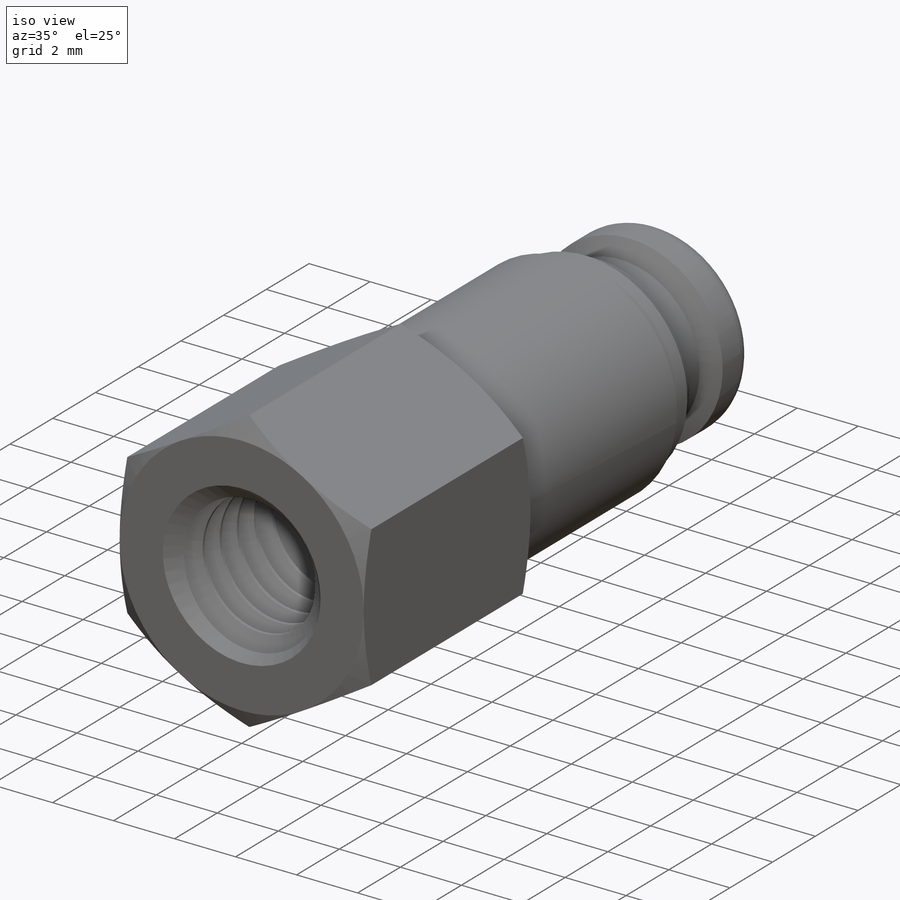
[diagram: iso view]
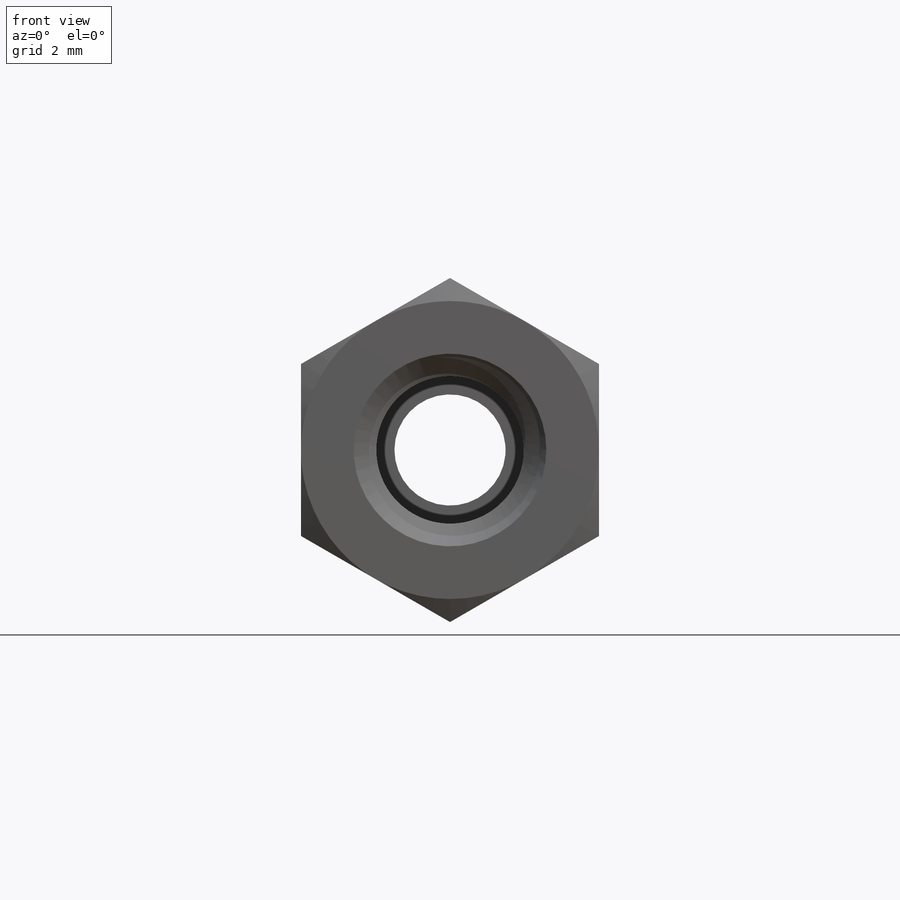
[diagram: front view]
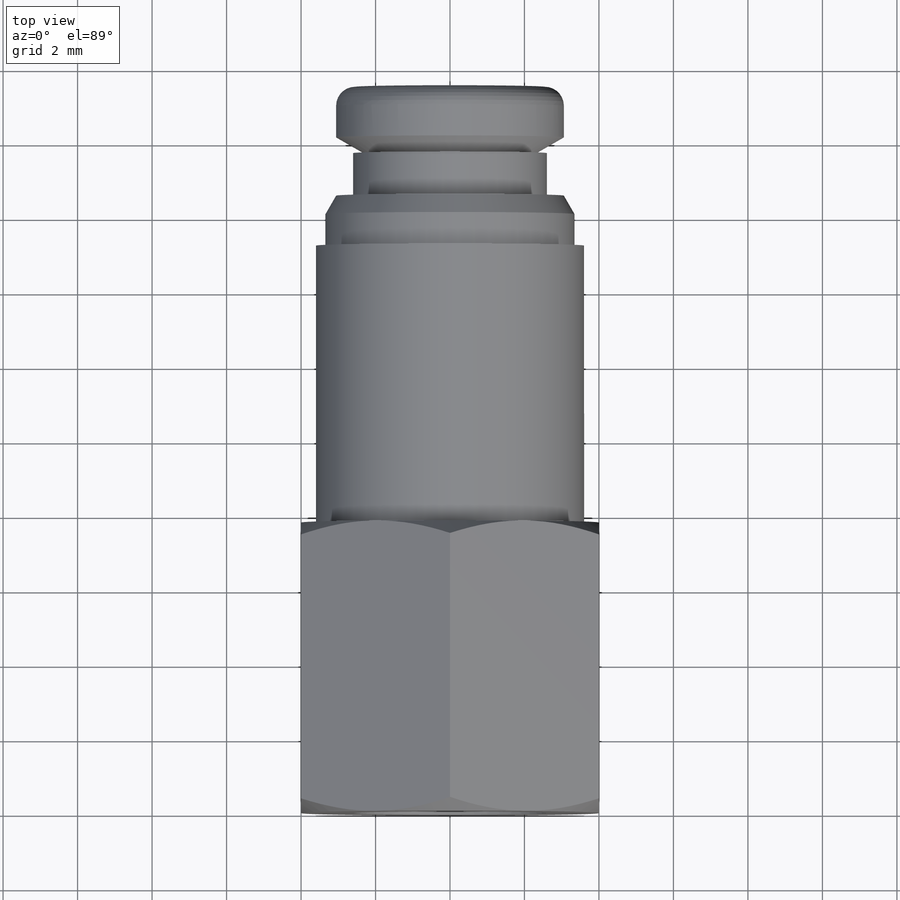
[diagram: top view]
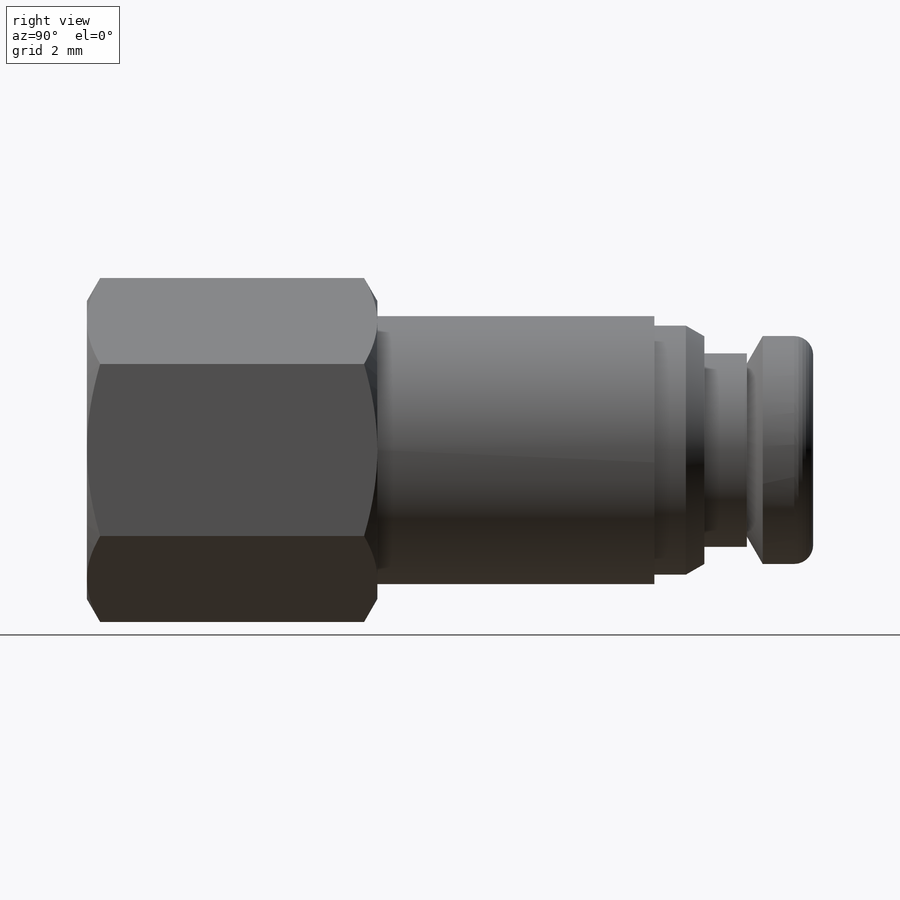
[diagram: right view]
SOLIDWORKS PART (.sldprt)
format: sldprt  version: not decoded by parser v0  size: 668,672 bytes
history: native  units: mm
features: sketch x9, cut_extrude x5, material x1, extrude x1, helix x1, sweep x1, revolve x1 (+14 scaffold rows collapsed)
feature tree (33):
  scaffold x14  (default folders/planes/origin — collapsed)
  material  "Material <not specified>"
  sketch  "Sketch1"  dims[hex size=8.0mm]
  extrude  "Extrude1"  Depth=7.8mm E=7.8mm
  sketch  "Sketch2"  dims[pipe dia=5.0mm]
  cut_extrude  "Cut-Extrude1"  Depth=6.5mm thread length=6.5mm
  sketch  "Sketch3"
  helix  "Helix/Spiral1"  Pitch=7.3mm pitch=0.8mm
  sketch  "Sketch4"  dims[c1.D1=~3.36501mm c2.D1=60.0deg c2.D2=~0.167105mm c2.D3=0.4mm c2.D4=1.5875mm c3.D4=5.0deg c4.D4=1.5875mm c5.D4=5.0deg c5.D1=~1.157739mm c6.D1=60.0deg c6.D4=~0.69282mm c6.D2=~0.086603mm c6.D5=0.075mm]
  sweep  "Sweep1"
  sketch  "Sketch5"  dims[D1=0.0mm]
  cut_extrude  "Cut-Extrude2"  [1 undecoded]
  sketch  "Sketch6"
  cut_extrude  "Cut-Extrude3"  [1 undecoded]
  sketch  "Sketch7"  dims[c1.D4=0.508mm c1.Tube OD=4.0mm c1.G=7.2mm c1.H=19.5mm c1.D1=5.202mm c1.D2=1.778mm c1.D3=1.143mm c1.D5=1.651mm c2.D5=60.0deg c2.D6=6.12mm c2.D8=1.651mm c3.D8=30.0deg c4.D8=~12.78636mm c5.D8=30.0deg c5.D9=0.254mm]
  revolve  "Revolve1"  Angle=360deg
  sketch  "Sketch8"  dims[D1=0.508mm]
  cut_extrude  "Cut-Extrude4"  [1 undecoded]
  sketch  "Sketch9"
  cut_extrude  "Cut-Extrude5"  [1 undecoded]
decode coverage: 10 of 18 modeling features carry decoded parameters
note: ~ marks probable driven/reference dimensions
note: 4 parameter values undecoded
summary: no parameter record found for 4 features
note: suppression state not decoded; provenance and decode notes live in map.json
